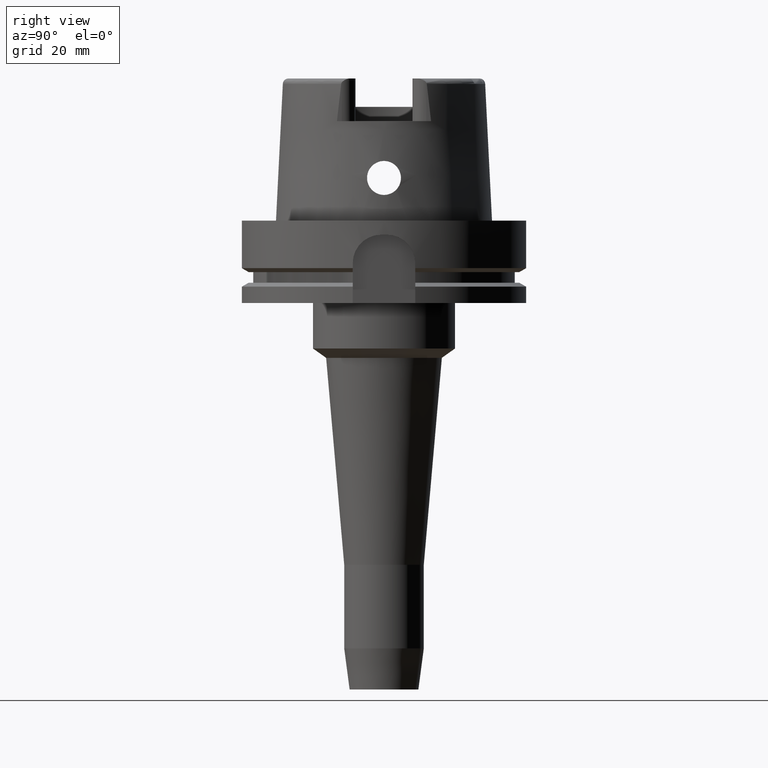
[diagram: clean part render]
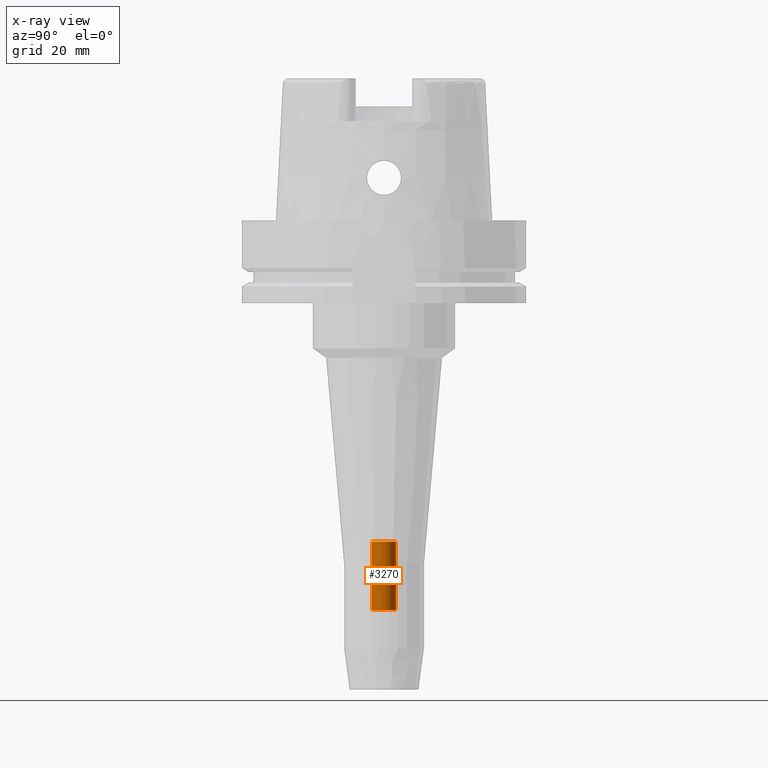
[diagram: x-ray — body ghosted, one internal face saturated and labeled with its STEP entity id]
A machine part, right view, then the same camera in x-ray: the body is ghosted and one INTERNAL B-rep face — a face not visible from any outside direction — is saturated and labeled: STEP entity #3270.
In plain terms, the highlighted cylindrical surface (edge-blend (fillet) strip) has radius 4.25 mm, axis along (0, 0, 1).
Its self-contained STEP definition (entity closure, byte-faithful):
#967=CARTESIAN_POINT('',(0.E0,0.E0,-1.13E2));
#968=DIRECTION('',(0.E0,0.E0,1.E0));
#969=DIRECTION('',(0.E0,-1.E0,0.E0));
#970=AXIS2_PLACEMENT_3D('',#967,#968,#969);
#999=DIRECTION('',(0.E0,0.E0,1.E0));
#1000=VECTOR('',#999,2.4E1);
#1001=CARTESIAN_POINT('',(0.E0,4.25E0,-1.37E2));
#1002=LINE('',#1001,#1000);
#1006=DIRECTION('',(0.E0,0.E0,1.E0));
#1007=VECTOR('',#1006,2.4E1);
#1008=CARTESIAN_POINT('',(0.E0,-4.25E0,-1.37E2));
#1009=LINE('',#1008,#1007);
#1021=CARTESIAN_POINT('',(0.E0,0.E0,-1.37E2));
#1022=DIRECTION('',(0.E0,0.E0,-1.E0));
#1023=DIRECTION('',(0.E0,1.E0,0.E0));
#1024=AXIS2_PLACEMENT_3D('',#1021,#1022,#1023);
#2389=CARTESIAN_POINT('',(0.E0,-4.25E0,-1.13E2));
#2390=CARTESIAN_POINT('',(0.E0,4.25E0,-1.13E2));
#2391=VERTEX_POINT('',#2389);
#2392=VERTEX_POINT('',#2390);
#2393=CARTESIAN_POINT('',(0.E0,4.25E0,-1.37E2));
#2394=VERTEX_POINT('',#2393);
#2395=CARTESIAN_POINT('',(0.E0,-4.25E0,-1.37E2));
#2396=VERTEX_POINT('',#2395);
#3256=CARTESIAN_POINT('',(0.E0,0.E0,-1.7575E2));
#3257=DIRECTION('',(0.E0,0.E0,1.E0));
#3258=DIRECTION('',(0.E0,1.E0,0.E0));
#3259=AXIS2_PLACEMENT_3D('',#3256,#3257,#3258);
#3260=CYLINDRICAL_SURFACE('',#3259,4.25E0);
#3262=ORIENTED_EDGE('',*,*,#3261,.T.);
#3263=ORIENTED_EDGE('',*,*,#3245,.F.);
#3265=ORIENTED_EDGE('',*,*,#3264,.F.);
#3267=ORIENTED_EDGE('',*,*,#3266,.F.);
#3268=EDGE_LOOP('',(#3262,#3263,#3265,#3267));
#3269=FACE_OUTER_BOUND('',#3268,.F.);
#971=CIRCLE('',#970,4.25E0);
#1025=CIRCLE('',#1024,4.25E0);
#3245=EDGE_CURVE('',#2391,#2392,#971,.T.);
#3261=EDGE_CURVE('',#2394,#2392,#1002,.T.);
#3264=EDGE_CURVE('',#2396,#2391,#1009,.T.);
#3266=EDGE_CURVE('',#2394,#2396,#1025,.T.);
#3270=ADVANCED_FACE('',(#3269),#3260,.F.);